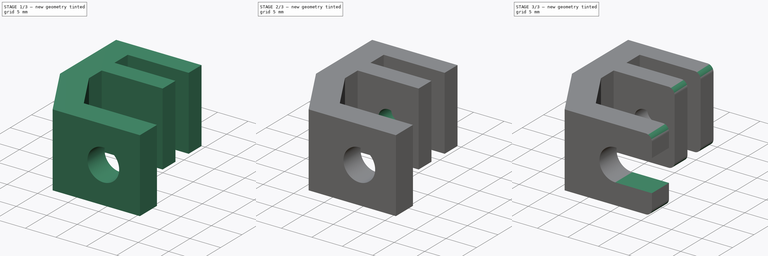
[diagram: build sequence overview — one tinted view per stage of 3, left to right]
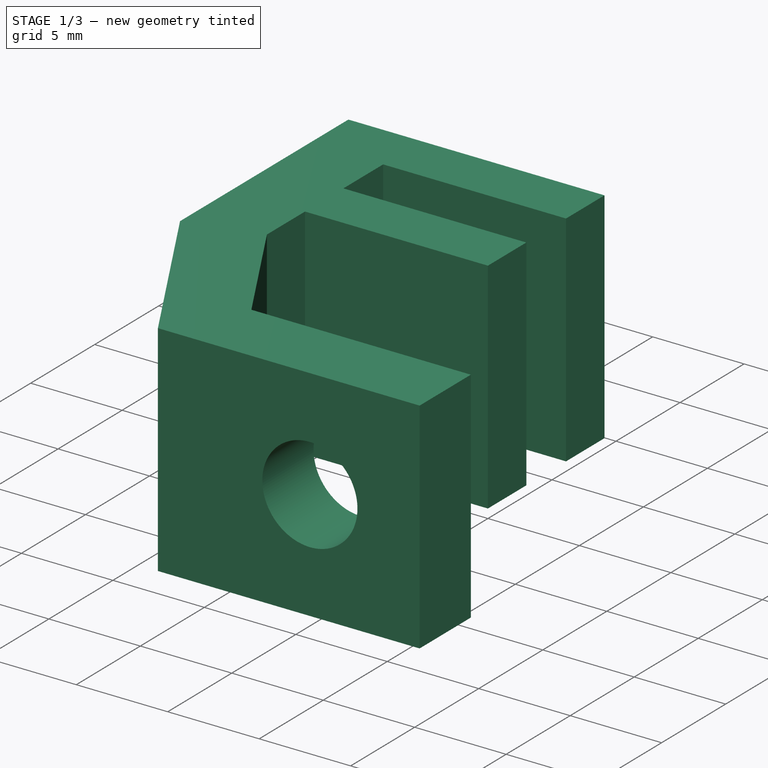
[diagram: stage 1 of 3 — iso view after this stage's code; geometry added in this stage tinted green]
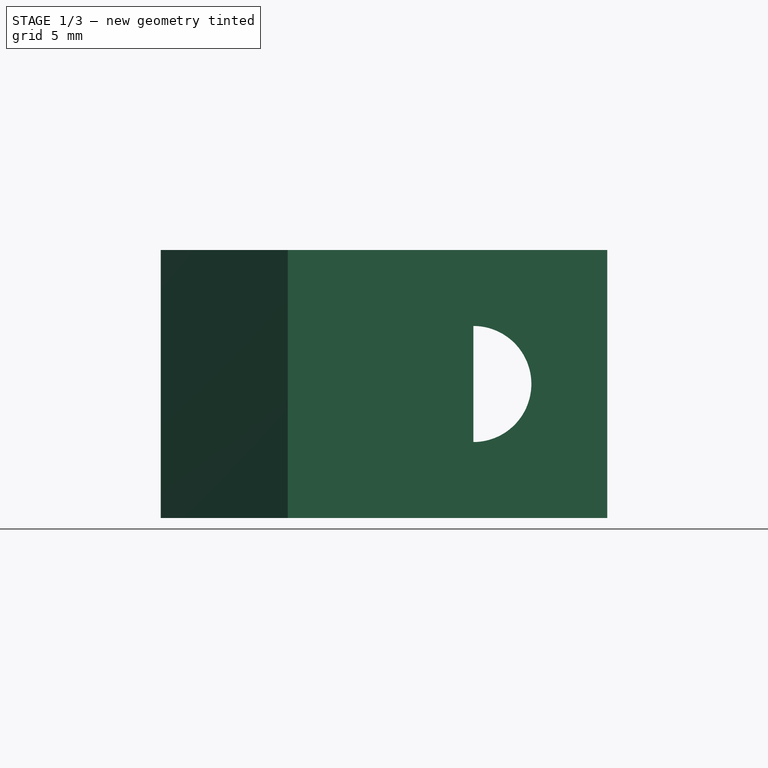
[diagram: stage 1 of 3 — front view after this stage's code; geometry added in this stage tinted green]
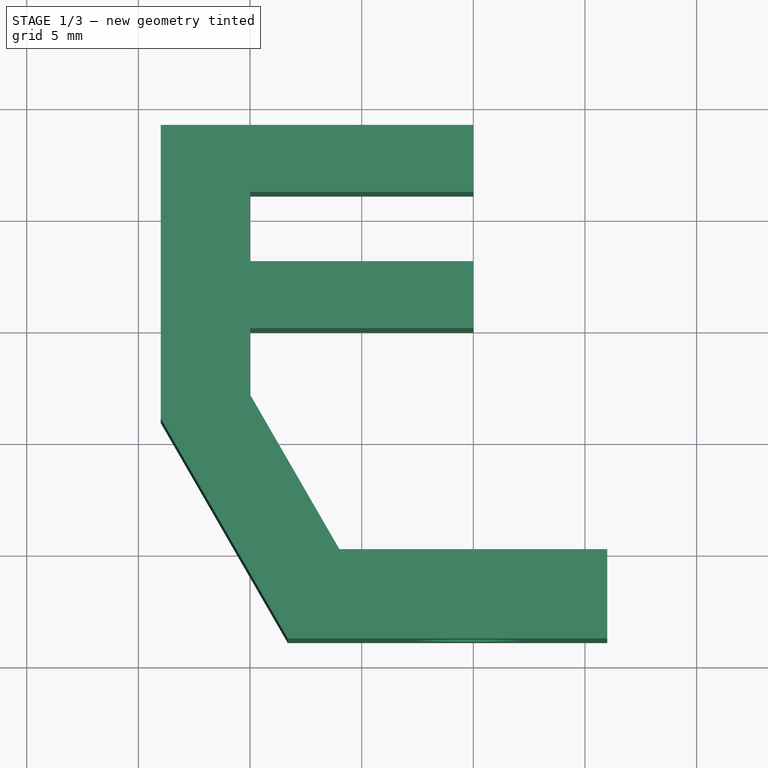
[diagram: stage 1 of 3 — top view after this stage's code; geometry added in this stage tinted green]
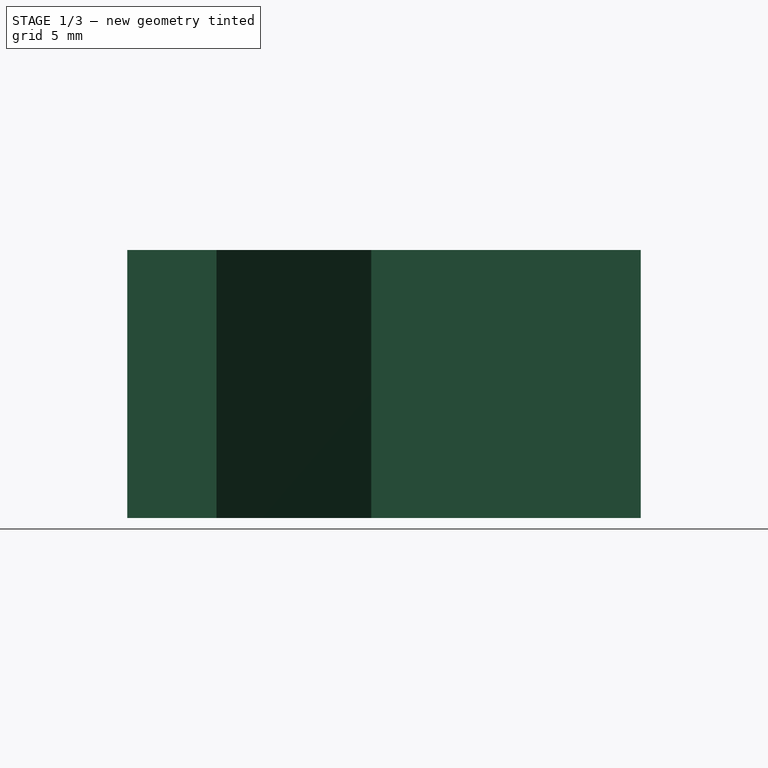
[diagram: stage 1 of 3 — right view after this stage's code; geometry added in this stage tinted green]
FCSTD DOCUMENT  (FreeCAD 0.19R24276 (Git))
Label: belt_tension_fix
License: All rights reserved
LicenseURL: http://en.wikipedia.org/wiki/All_rights_reserved
objects: Sketcher::SketchObject×4, PartDesign::Pocket×3, PartDesign::Pad×1, PartDesign::Fillet×1, PartDesign::Body×1
note: 15 computed .brp shape members not serialized (recipe doc carries the construction recipe); baked Part::Feature solids carry a one-line shape summary decoded from their .brp

FEATURE [Sketcher::SketchObject] Sketch
  FullyConstrained = false
  MapMode = 5
  Support = -> [XY_Plane]
  sketch-geometry (40):
    g0: LineSegment StartX=0 StartY=0 StartZ=0 EndX=10 EndY=0 EndZ=0
    g1: LineSegment StartX=10 StartY=0 StartZ=0 EndX=10 EndY=3 EndZ=0
    g2: LineSegment StartX=10 StartY=3 StartZ=0 EndX=0 EndY=3 EndZ=0
    g3: LineSegment StartX=0 StartY=3 StartZ=0 EndX=0 EndY=0 EndZ=0
    g4: LineSegment StartX=0 StartY=6.1 StartZ=0 EndX=10 EndY=6.1 EndZ=0
    g5: LineSegment StartX=10 StartY=6.1 StartZ=0 EndX=10 EndY=9.1 EndZ=0
    g6: LineSegment StartX=10 StartY=9.1 StartZ=0 EndX=0 EndY=9.1 EndZ=0
    g7: LineSegment StartX=0 StartY=9.1 StartZ=0 EndX=0 EndY=6.1 EndZ=0
    g8: LineSegment StartX=0 StartY=9.1 StartZ=0 EndX=-4 EndY=9.1 EndZ=0
    g9: LineSegment StartX=-4 StartY=9.1 StartZ=0 EndX=-4 EndY=-13.9 EndZ=0
    g10: LineSegment StartX=-4 StartY=-13.9 StartZ=0 EndX=0 EndY=-13.9 EndZ=0
    g11: LineSegment StartX=0 StartY=-13.9 StartZ=0 EndX=0 EndY=9.1 EndZ=0
    g12: LineSegment StartX=0 StartY=-13.9 StartZ=0 EndX=16 EndY=-13.9 EndZ=0
    g13: LineSegment StartX=16 StartY=-13.9 StartZ=0 EndX=16 EndY=-9.9 EndZ=0
    g14: LineSegment StartX=16 StartY=-9.9 StartZ=0 EndX=0 EndY=-9.9 EndZ=0
    g15: LineSegment StartX=0 StartY=-9.9 StartZ=0 EndX=0 EndY=-13.9 EndZ=0
    g16: LineSegment StartX=-4 StartY=9.1 StartZ=0 EndX=10 EndY=9.1 EndZ=0
    g17: LineSegment StartX=10 StartY=9.1 StartZ=0 EndX=10 EndY=6.1 EndZ=0
    g18: LineSegment StartX=10 StartY=6.1 StartZ=0 EndX=0 EndY=6.1 EndZ=0
    g19: LineSegment StartX=0 StartY=6.1 StartZ=0 EndX=0 EndY=3 EndZ=0
    g20: LineSegment StartX=0 StartY=3 StartZ=0 EndX=10 EndY=3 EndZ=0
    g21: LineSegment StartX=10 StartY=3 StartZ=0 EndX=10 EndY=0 EndZ=0
    g22: LineSegment StartX=10 StartY=0 StartZ=0 EndX=0 EndY=0 EndZ=0
    g23: LineSegment StartX=16 StartY=-9.9 StartZ=0 EndX=16 EndY=-13.9 EndZ=0
    g24: LineSegment StartX=4 StartY=-9.9 StartZ=0 EndX=0 EndY=-2.9718 EndZ=0
    g25: LineSegment StartX=-4 StartY=-4.04359 StartZ=0 EndX=1.6906 EndY=-13.9 EndZ=0
    g26: LineSegment StartX=10 StartY=-6.60431 StartZ=0 EndX=10 EndY=-15.5828 EndZ=0
    g27: LineSegment StartX=7.5 StartY=-8.05884 StartZ=0 EndX=12.5 EndY=-8.05884 EndZ=0
    g28: LineSegment StartX=12.5 StartY=-8.05884 StartZ=0 EndX=12.5 EndY=-15.5828 EndZ=0
    g29: LineSegment StartX=12.5 StartY=-15.5828 StartZ=0 EndX=7.5 EndY=-15.5828 EndZ=0
    g30: LineSegment StartX=7.5 StartY=-15.5828 StartZ=0 EndX=7.5 EndY=-8.05884 EndZ=0
    g31: LineSegment StartX=5 StartY=-6.60431 StartZ=0 EndX=15 EndY=-6.60431 EndZ=0
    g32: LineSegment StartX=15 StartY=-6.60431 StartZ=0 EndX=15 EndY=-9.50222 EndZ=0
    g33: LineSegment StartX=15 StartY=-9.50222 StartZ=0 EndX=5 EndY=-9.50222 EndZ=0
    g34: LineSegment StartX=5 StartY=-9.50222 StartZ=0 EndX=5 EndY=-6.60431 EndZ=0
    g35: LineSegment StartX=4 StartY=-9.9 StartZ=0 EndX=0.535898 EndY=-11.9 EndZ=0
    g36: LineSegment StartX=-4 StartY=9.1 StartZ=0 EndX=-4 EndY=-4.04359 EndZ=0
    g37: LineSegment StartX=1.6906 StartY=-13.9 StartZ=0 EndX=16 EndY=-13.9 EndZ=0
    g38: LineSegment StartX=4 StartY=-9.9 StartZ=0 EndX=16 EndY=-9.9 EndZ=0
    g39: LineSegment StartX=0 StartY=-2.9718 StartZ=0 EndX=0 EndY=0 EndZ=0
  constraints (104):
    c: Coincident(g0,g1)
    c: Coincident(g1,g2)
    c: Coincident(g2,g3)
    c: Coincident(g3,g0)
    c: Horizontal(g0)
    c: Horizontal(g2)
    c: Vertical(g1)
    c: Vertical(g3)
    c: Coincident(g0,g-1)
    c: Coincident(g4,g5)
    c: Coincident(g5,g6)
    c: Coincident(g6,g7)
    c: Coincident(g7,g4)
    c: Horizontal(g4)
    c: Horizontal(g6)
    c: Vertical(g5)
    c: Vertical(g7)
    c: PointOnObject(g4,g-2)
    c: DistanceY(g2,g4) = 3.1
    c: DistanceY(g7,g7) = 3
    c: DistanceY(g3,g3) = 3
    c: DistanceX(g6,g6) = 10
    c: Vertical(g4,g1)
    c: Coincident(g8,g9)
    c: Coincident(g9,g10)
    c: Coincident(g10,g11)
    c: Coincident(g11,g8)
    c: Horizontal(g8)
    c: Horizontal(g10)
    c: Vertical(g9)
    c: Vertical(g11)
    c: Coincident(g8,g6)
    c: DistanceX(g8,g8) = 4
    c: Coincident(g12,g13)
    c: Coincident(g13,g14)
    c: Coincident(g14,g15)
    c: Coincident(g15,g12)
    c: Horizontal(g12)
    c: Horizontal(g14)
    c: Vertical(g13)
    c: Vertical(g15)
    c: Coincident(g12,g10)
    c: DistanceY(g13,g13) = 4
    c: DistanceY(g9,g9) = 23
    c: DistanceX(g12,g12) = 16
    c: Coincident(g16,g8)
    c: Coincident(g17,g5)
    c: Coincident(g17,g4)
    c: Coincident(g16,g17)
    c: Coincident(g18,g17)
    c: Coincident(g19,g4)
    c: Coincident(g20,g1)
    c: Coincident(g21,g20)
    c: Coincident(g22,g0)
    c: Coincident(g18,g19)
    c: Coincident(g19,g2)
    c: Coincident(g20,g19)
    c: Coincident(g21,g22)
    c: Coincident(g22,g-1)
    c: Parallel(g24,g25)
    c: Vertical(g26)
    c: Vertical(g21,g26)
    c: Coincident(g27,g28)
    c: Coincident(g28,g29)
    c: Coincident(g29,g30)
    c: Coincident(g30,g27)
    c: Horizontal(g27)
    c: Horizontal(g29)
    c: Vertical(g28)
    c: Vertical(g30)
    c: Symmetric(g29,g28,g26)
    c: DistanceX(g27,g27) = 5
    c: Coincident(g31,g32)
    c: Coincident(g32,g33)
    c: Coincident(g33,g34)
    c: Coincident(g34,g31)
    c: Horizontal(g31)
    c: Horizontal(g33)
    c: Vertical(g32)
    c: Vertical(g34)
    c: Symmetric(g31,g31,g26)
    c: DistanceX(g31,g31) = 10
    c: Coincident(g35,g24)
    c: PointOnObject(g35,g25)
    c: Distance(g35) = 4
    c: Coincident(g36,g16)
    c: Coincident(g37,g25)
    c: Coincident(g37,g23)
    c: Vertical(g23)
    c: Horizontal(g37)
    c: Coincident(g25,g36)
    c: Horizontal(g9,g25)
    c: Vertical(g36)
    c: Coincident(g38,g24)
    c: Coincident(g38,g23)
    c: Horizontal(g38)
    c: Vertical(g13,g23)
    c: Horizontal(g13,g23)
    c: Coincident(g39,g24)
    c: Coincident(g39,g22)
    c: Vertical(g39)
    c: Angle(g38,g24) = 2.0944
    c: Perpendicular(g24,g35)
    c: DistanceX(g24,g23) = 12
FEATURE [PartDesign::Pad] Pad
  Direction = (1,1,1)
  Length = 12
  Length2 = 100
  Profile = -> Sketch
  Type = 0
FEATURE [Sketcher::SketchObject] Sketch001
  FullyConstrained = true
  MapMode = 5
  Placement = pos=(0,-13.9,0) rot=(1,0,0;1.5708rad)
  Support = -> [Pad]
  sketch-geometry (5):
    g0: Circle CenterX=10 CenterY=6 CenterZ=0 NormalX=0 NormalY=0 NormalZ=1 AngleXU=0 Radius=2.6
    g1: LineSegment StartX=0 StartY=12 StartZ=0 EndX=16 EndY=12 EndZ=0
    g2: LineSegment StartX=16 StartY=12 StartZ=0 EndX=16 EndY=0 EndZ=0
    g3: LineSegment StartX=16 StartY=0 StartZ=0 EndX=0 EndY=0 EndZ=0
    g4: LineSegment StartX=0 StartY=0 StartZ=0 EndX=0 EndY=12 EndZ=0
  constraints (15):
    c: Coincident(g1,g2)
    c: Coincident(g2,g3)
    c: Coincident(g3,g4)
    c: Coincident(g4,g1)
    c: Horizontal(g1)
    c: Horizontal(g3)
    c: Vertical(g2)
    c: Vertical(g4)
    c: PointOnObject(g1,g-2)
    c: DistanceX(g3,g3) = 16
    c: DistanceY(g2,g2) = 12
    c: Diameter(g0) = 5.2
    c: DistanceX(g0,g2) = 6
    c: DistanceY(g3,g0) = 6
    c: Horizontal(g2,g-1)
FEATURE [PartDesign::Pocket] Pocket
  BaseFeature = -> Pad
  Length = 4
  Length2 = 100
  Profile = -> Sketch001
  Type = 0
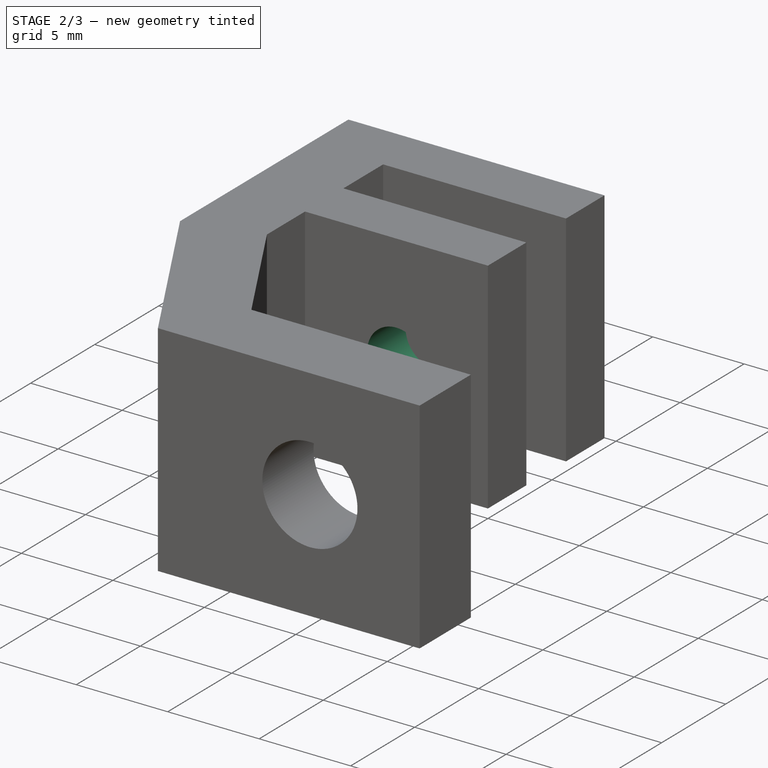
[diagram: stage 2 of 3 — iso view after this stage's code; geometry added in this stage tinted green]
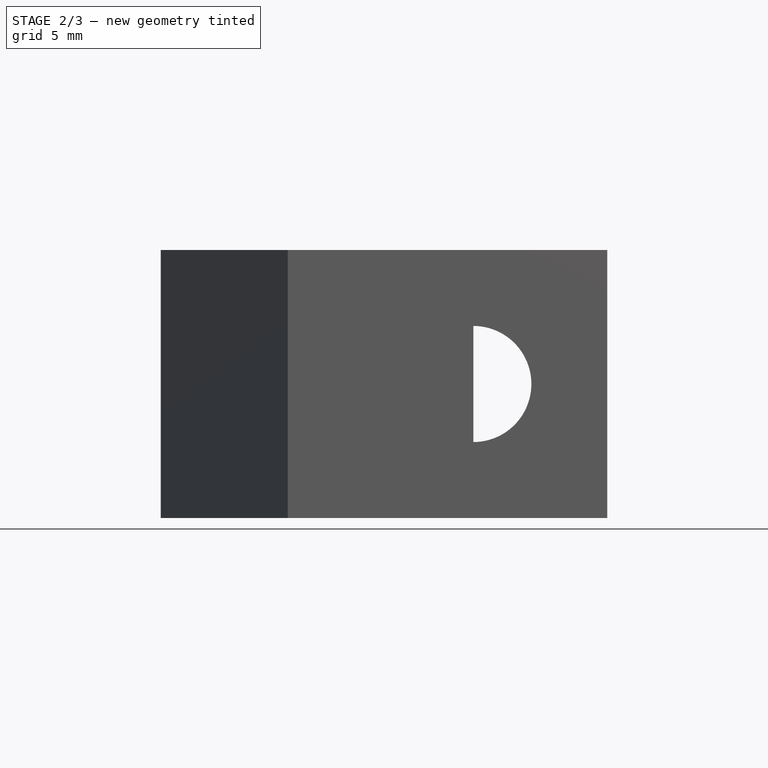
[diagram: stage 2 of 3 — front view after this stage's code; geometry added in this stage tinted green]
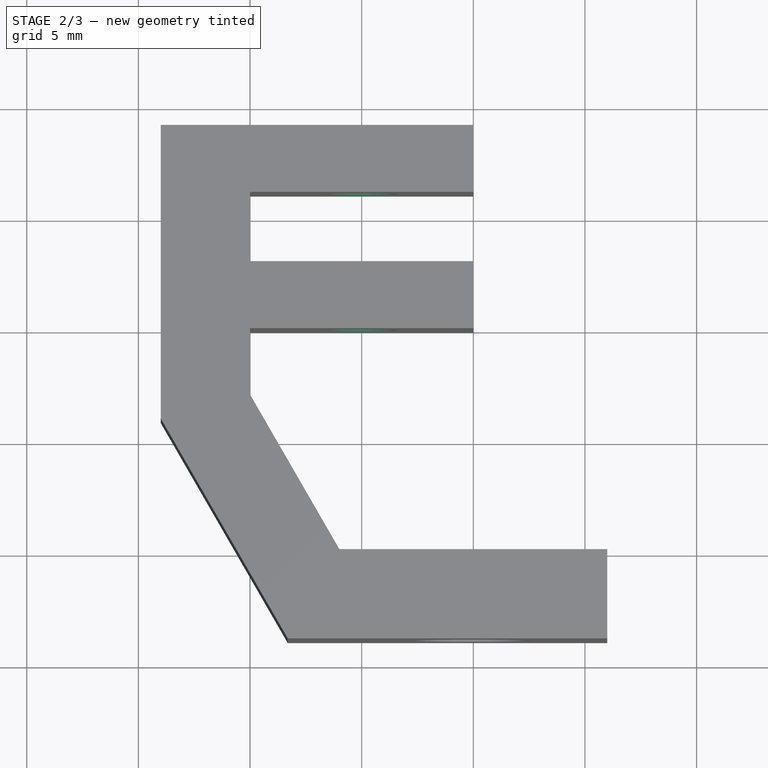
[diagram: stage 2 of 3 — top view after this stage's code; geometry added in this stage tinted green]
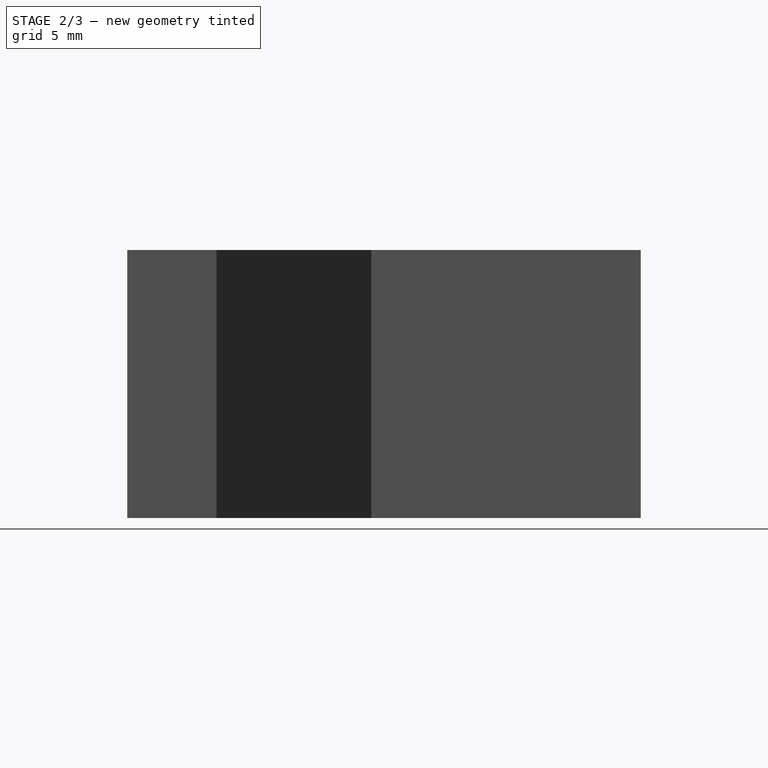
[diagram: stage 2 of 3 — right view after this stage's code; geometry added in this stage tinted green]
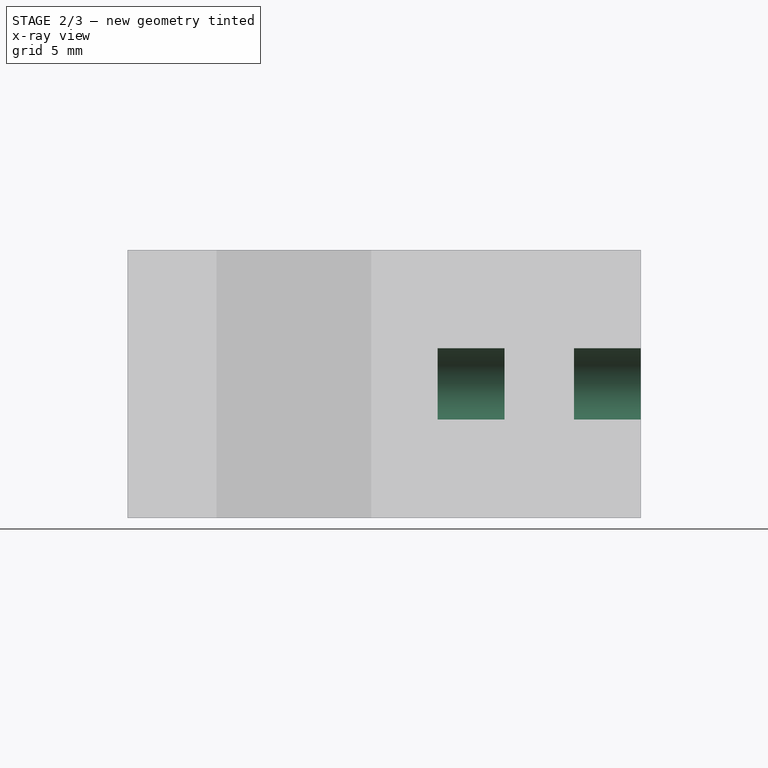
[diagram: stage 2 of 3 — x-ray composite at the right view; earlier geometry ghosted, this stage's added geometry solid]
FEATURE [Sketcher::SketchObject] Sketch002
  FullyConstrained = true
  MapMode = 5
  Placement = pos=(0,9.1,0) rot=(0,0.707107,0.707107;3.14159rad)
  Support = -> [Pocket]
  sketch-geometry (1):
    g0: Circle CenterX=-5 CenterY=6 CenterZ=0 NormalX=0 NormalY=0 NormalZ=1 AngleXU=0 Radius=1.6
  constraints (3):
    c: Diameter(g0) = 3.2
    c: DistanceY(g-1,g0) = 6
    c: DistanceX(g0,g-1) = 5
FEATURE [PartDesign::Pocket] Pocket001
  BaseFeature = -> Pocket
  Length = 10
  Length2 = 100
  Profile = -> Sketch002
  Type = 0
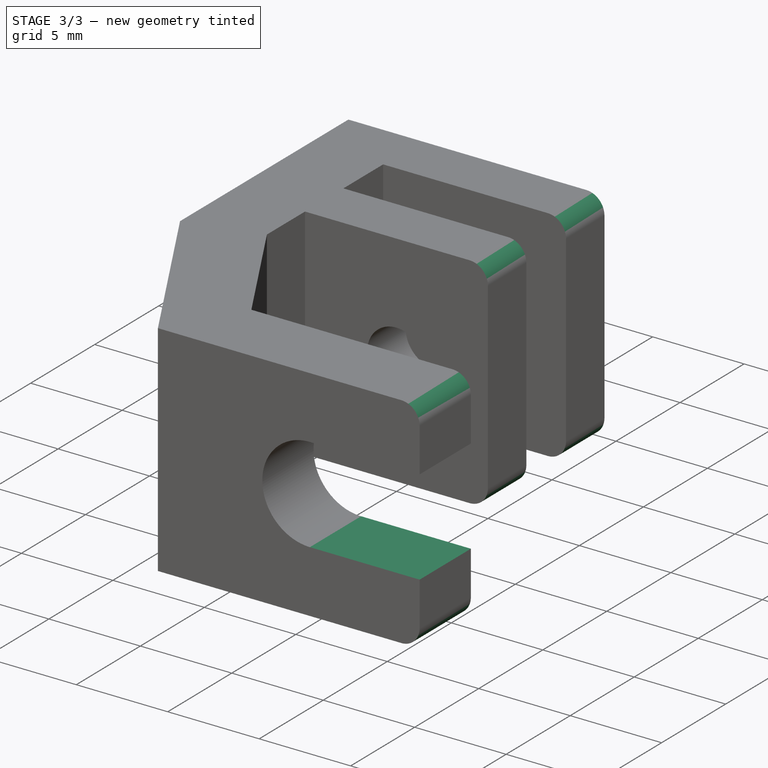
[diagram: stage 3 of 3 — iso view after this stage's code; geometry added in this stage tinted green]
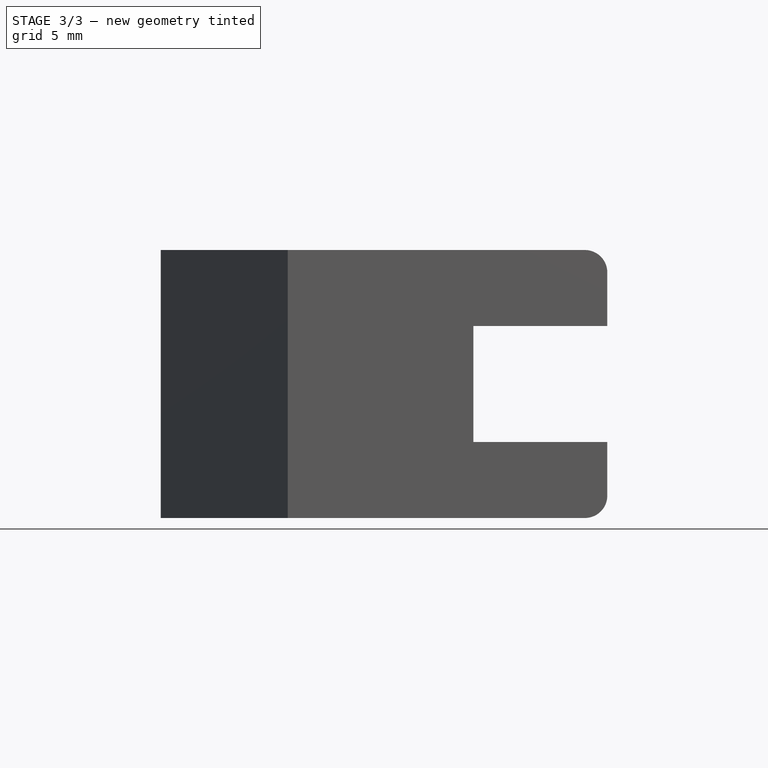
[diagram: stage 3 of 3 — front view after this stage's code; geometry added in this stage tinted green]
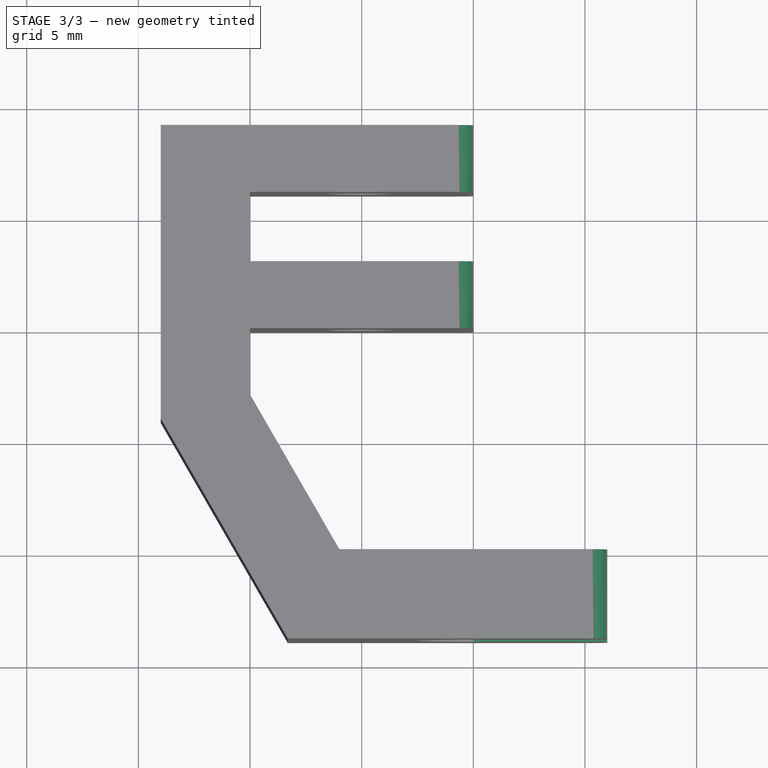
[diagram: stage 3 of 3 — top view after this stage's code; geometry added in this stage tinted green]
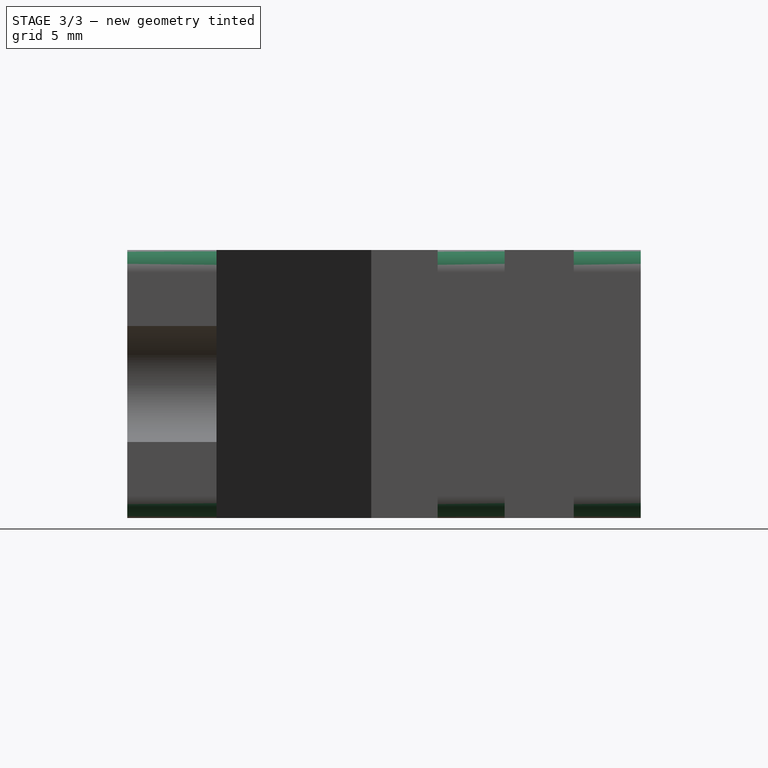
[diagram: stage 3 of 3 — right view after this stage's code; geometry added in this stage tinted green]
FEATURE [PartDesign::Fillet] Fillet
  Base = -> Pocket001 [Edge27,Edge23,Edge12,Edge16,Edge32,Edge21]
  BaseFeature = -> Pocket001
  Radius = 1
  SupportTransform = false
FEATURE [Sketcher::SketchObject] Sketch003
  FullyConstrained = true
  MapMode = 5
  Placement = pos=(0,-9.9,0) rot=(0,0.707107,0.707107;3.14159rad)
  Support = -> [Fillet]
  sketch-geometry (4):
    g0: LineSegment StartX=-18 StartY=8.6 StartZ=0 EndX=-10 EndY=8.6 EndZ=0
    g1: LineSegment StartX=-10 StartY=8.6 StartZ=0 EndX=-10 EndY=3.4 EndZ=0
    g2: LineSegment StartX=-10 StartY=3.4 StartZ=0 EndX=-18 EndY=3.4 EndZ=0
    g3: LineSegment StartX=-18 StartY=3.4 StartZ=0 EndX=-18 EndY=8.6 EndZ=0
  constraints (12):
    c: Coincident(g0,g1)
    c: Coincident(g1,g2)
    c: Coincident(g2,g3)
    c: Coincident(g3,g0)
    c: Horizontal(g0)
    c: Horizontal(g2)
    c: Vertical(g1)
    c: Vertical(g3)
    c: DistanceX(g1,g-1) = 10
    c: DistanceY(g3,g3) = 5.2
    c: DistanceY(g-1,g1) = 3.4
    c: DistanceX(g0,g0) = 8
FEATURE [PartDesign::Pocket] Pocket002
  BaseFeature = -> Fillet
  Length = 5
  Length2 = 100
  Profile = -> Sketch003
  Type = 0
FEATURE [PartDesign::Body] Body
  Group = -> [Sketch,Pad,Sketch001,Pocket,Sketch002,Pocket001,Fillet,Sketch003,Pocket002]
  Origin = -> Origin
  Tip = -> Pocket002
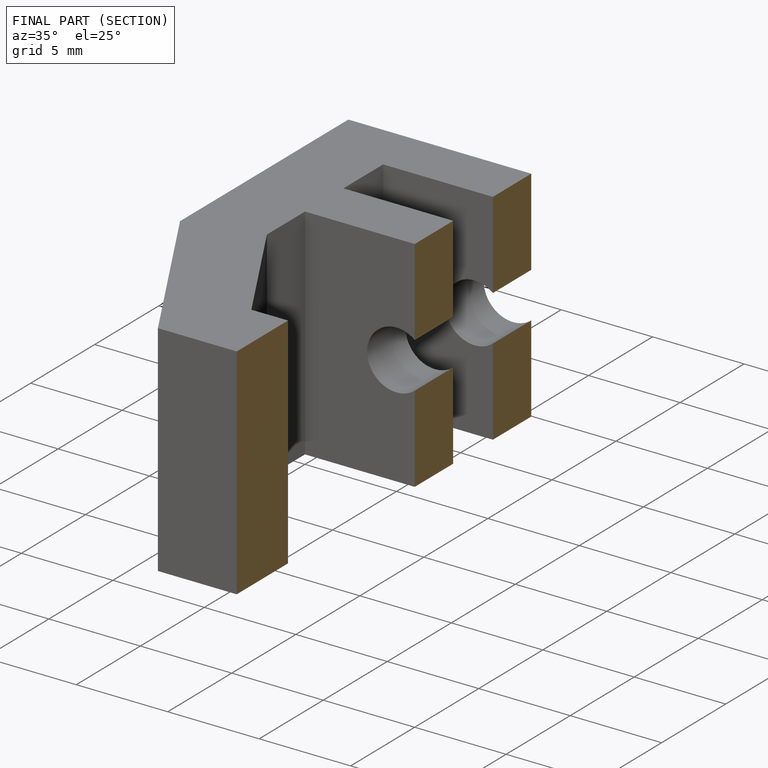
[diagram: finished part — half-section view (interior)]
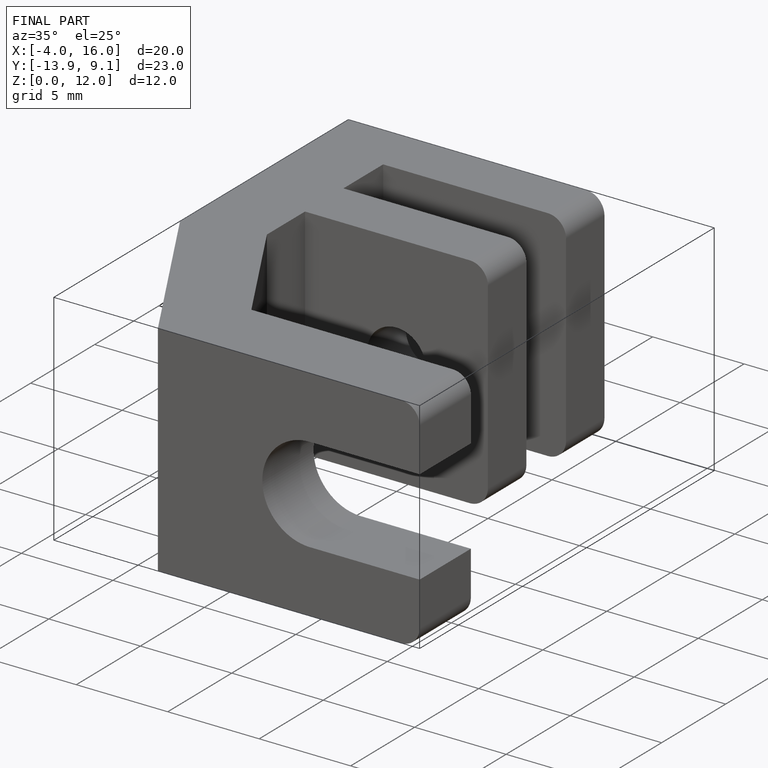
[diagram: finished part — iso view with bounding-box wireframe]
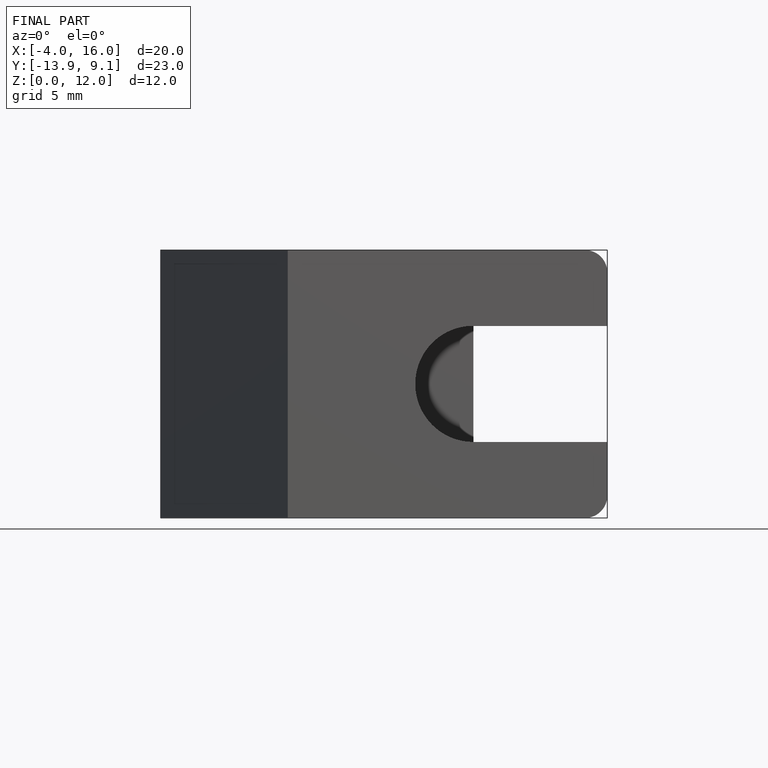
[diagram: finished part — front view with bounding-box wireframe]
